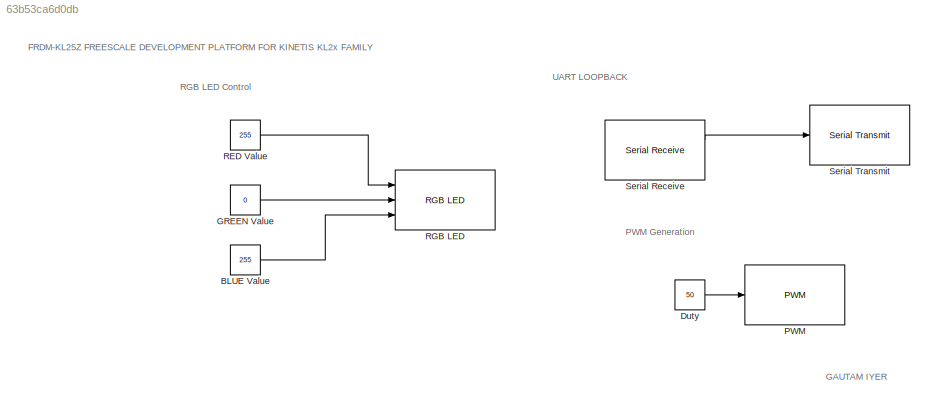
MODEL slx_63b53ca6d0db
KIND model
CONFIG AbsTol = auto
CONFIG EnableMultiTasking = on
CONFIG FixedStep = auto
CONFIG MaxStep = auto
CONFIG MinStep = auto
CONFIG RelTol = 1e-3
CONFIG SampleTimeConstraint = Unconstrained
CONFIG Solver = FixedStepDiscrete
CONFIG SolverName = FixedStepDiscrete
CONFIG StartTime = 0.0
CONFIG StopTime = 10.0
BLOCK [Constant] BLUE Value
  SampleTime = 1
  Value = 255
BLOCK [Constant] Duty
  Value = 50
BLOCK [Constant] GREEN Value
  SampleTime = 1
  Value = 0
BLOCK [Reference] PWM  REF=frdmkl25zlib/PWM
  Ports = [1]
  SourceBlock = frdmkl25zlib/PWM
  SourceType = PWM Output
BLOCK [Constant] RED Value
  OutDataTypeStr = uint8
  SampleTime = 1
  Value = 255
BLOCK [Reference] RGB LED  REF=frdmkl25zlib/RGB LED
  Ports = [3]
  SourceBlock = frdmkl25zlib/RGB LED
  SourceType = RGB LED
BLOCK [Reference] Serial Receive  REF=frdmkl25zlib/Serial Receive
  Ports = [0, 2]
  SourceBlock = frdmkl25zlib/Serial Receive
  SourceType = Serial Receive
BLOCK [Reference] Serial Transmit  REF=frdmkl25zlib/Serial Transmit
  Ports = [1]
  SourceBlock = frdmkl25zlib/Serial Transmit
  SourceType = Serial Transmit
ANNOTATION (root): GAUTAM IYER
ANNOTATION (root): FRDM-KL25Z FREESCALE DEVELOPMENT PLATFORM FOR KINETIS KL2x FAMILY
ANNOTATION (root): PWM Generation
ANNOTATION (root): RGB LED Control
ANNOTATION (root): UART LOOPBACK
LINE BLUE Value:1 -> RGB LED:3
LINE Duty:1 -> PWM:1
LINE GREEN Value:1 -> RGB LED:2
LINE RED Value:1 -> RGB LED:1
LINE Serial Receive:1 -> Serial Transmit:1
